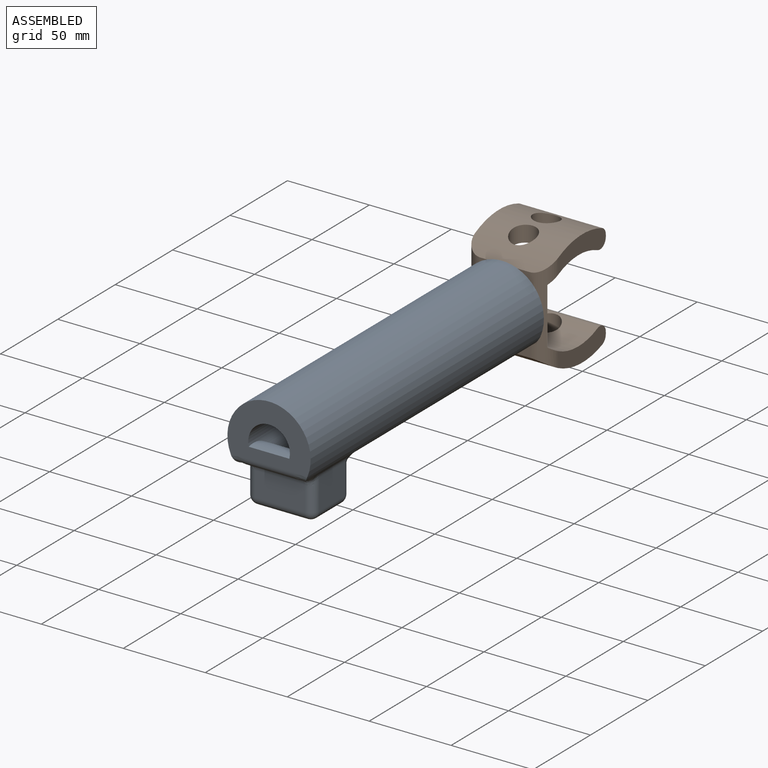
[diagram: assembled view]
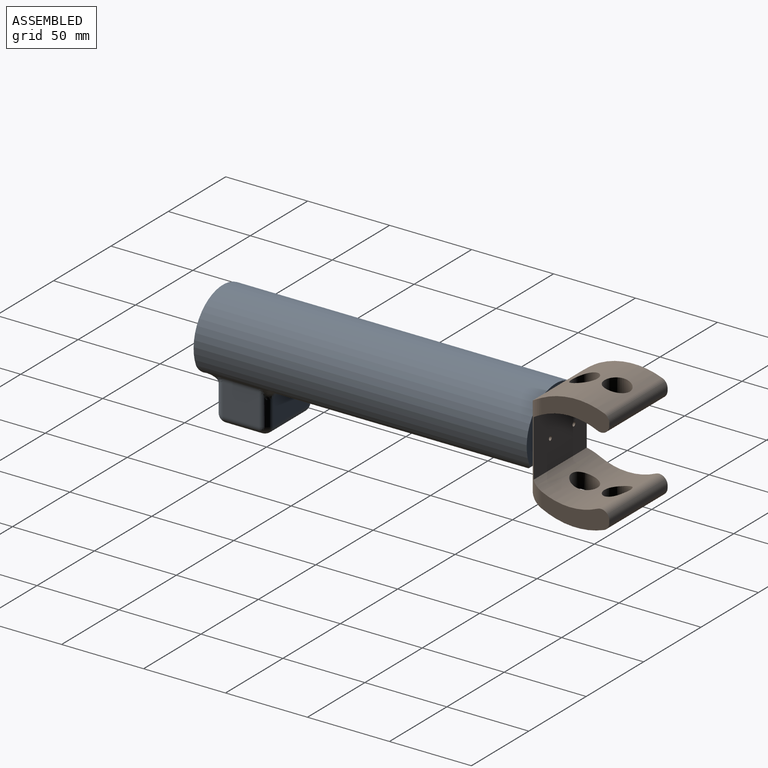
[diagram: assembled view, second angle]
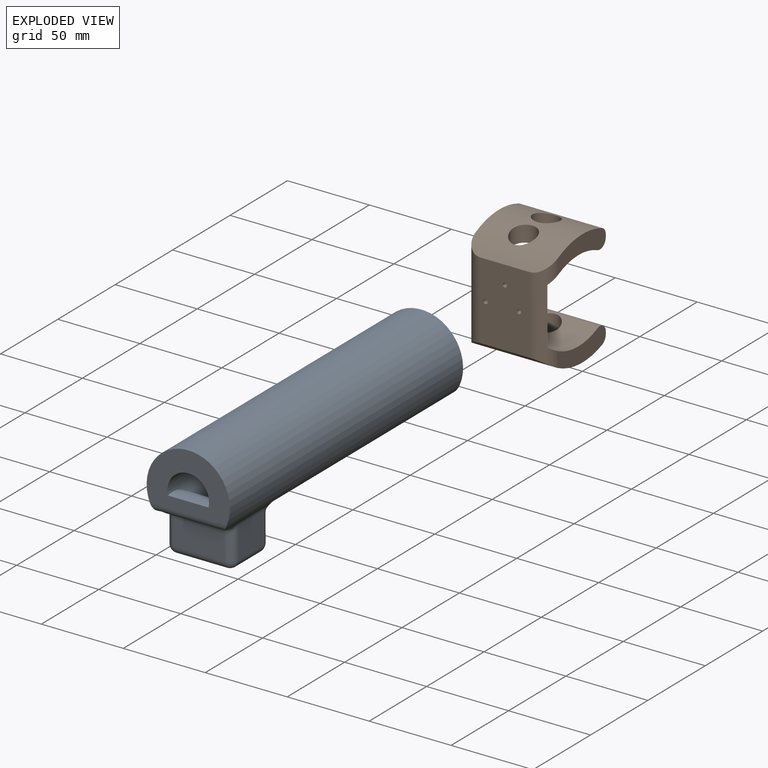
[diagram: exploded view]
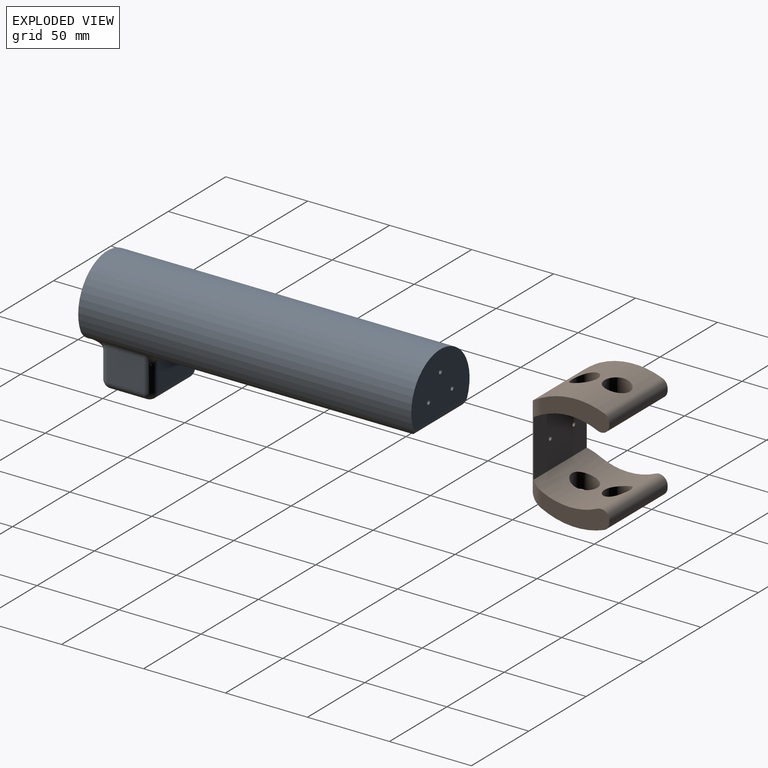
[diagram: exploded view, second angle]
ASSEMBLY  parts=2 mates=2
PART A: 77 faces, bbox 50.8x203.2x65.8 mm
  f0: plane 151.7x35.42mm, normal (0,0,-1), area 5364.2mm2, adj f24,f28,f31,f45,f46,f47
  f1: plane 50.8x35.58mm, normal (0,-1,0), area 1182.2mm2, adj f3,f36,f37,f38,f69,f70
  f2: plane 50.8x35.36mm, normal (0,1,0), area 1491.3mm2, adj f3,f46,f59,f61,f63
  f3: cylinder r=25.4mm len=203.2mm, axis (0,1,0), area 21637.4mm2, adj f1,f2,f11,f14,f19,f23,f27,f30
  f4: plane 30.78x15.24mm, normal (0,1,0), area 469mm2, adj f20,f25,f28,f32
  f5: plane 22.09x18.74mm, normal (1,0,0), area 413.9mm2, adj f17,f26,f27,f32
  f6: plane 30.78x15.24mm, normal (0,-1,0), area 469mm2, adj f9,f13,f16,f17
  f7: plane 22.09x18.74mm, normal (-1,0,0), area 413.9mm2, adj f9,f14,f15,f20
  f8: plane 30.78x22.09mm, normal (0,0,-1), area 653.4mm2, adj f15,f16,f25,f26,f51,f53,f55,f57
  f9: cylinder r=5.08mm len=18.74mm, axis (0,0,-1), area 128.2mm2, adj f6,f7,f11,f12,f41
  f10: torus R=10.16mm, axis (0,0,-1), area 8.5mm2, adj f13,f38,f39,f40
  f11: bspline ~8.71x6.84mm, area 10.3mm2, adj f3,f9,f14,f40,f41
  f12: sphere r=5.08mm, area 40.5mm2, adj f9,f15,f16
  f13: cylinder r=5.08mm len=30.78mm, axis (-1,0,0), area 233.3mm2, adj f6,f10,f18,f33,f37,f41
  f14: cylinder r=5.08mm len=22.09mm, axis (0,1,0), area 64.7mm2, adj f3,f7,f11,f19
  f15: cylinder r=5.08mm len=22.09mm, axis (0,-1,0), area 176.3mm2, adj f7,f8,f12,f21
  f16: cylinder r=5.08mm len=30.78mm, axis (1,0,0), area 245.6mm2, adj f6,f8,f12,f22
  f17: cylinder r=5.08mm len=18.74mm, axis (0,0,1), area 128.2mm2, adj f5,f6,f22,f23,f33
  f18: torus R=10.16mm, axis (0,0,-1), area 8.5mm2, adj f13,f34,f35,f36
  f19: bspline ~8.71x6.84mm, area 10.3mm2, adj f3,f14,f20,f49,f50
  f20: cylinder r=5.08mm len=18.74mm, axis (0,0,1), area 128.2mm2, adj f4,f7,f19,f21,f50
  f21: sphere r=5.08mm, area 55.3mm2, adj f15,f20,f25
  f22: sphere r=5.08mm, area 40.5mm2, adj f16,f17,f26
  f23: bspline ~8.71x6.84mm, area 10.3mm2, adj f3,f17,f27,f33,f34
  f24: torus R=10.16mm, axis (0,0,-1), area 9.3mm2, adj f0,f28,f48,f49
  f25: cylinder r=5.08mm len=30.78mm, axis (-1,0,0), area 245.6mm2, adj f4,f8,f21,f29
  f26: cylinder r=5.08mm len=22.09mm, axis (0,1,0), area 176.3mm2, adj f5,f8,f22,f29
  f27: cylinder r=5.08mm len=22.09mm, axis (0,1,0), area 64.7mm2, adj f3,f5,f23,f30
  f28: cylinder r=5.08mm len=30.78mm, axis (1,0,0), area 245.6mm2, adj f0,f4,f24,f31,f42,f50
  f29: sphere r=5.08mm, area 25.8mm2, adj f25,f26,f32
  f30: bspline ~8.71x6.84mm, area 10.3mm2, adj f3,f27,f32,f42,f43
  f31: torus R=10.16mm, axis (0,0,-1), area 9.3mm2, adj f0,f28,f43,f44
  f32: cylinder r=5.08mm len=18.74mm, axis (0,0,-1), area 128.2mm2, adj f4,f5,f29,f30,f42
  f33: bspline ~4.99x4.6mm, area 17.2mm2, adj f13,f17,f23,f34
  f34: bspline ~5.94x5.08mm, area 10mm2, adj f18,f23,f33,f35
  f35: bspline ~10x5.24mm, area 31.3mm2, adj f3,f18,f34,f36
  f36: bspline ~10.08x6.34mm, area 43.2mm2, adj f1,f3,f18,f35,f37
  f37: cylinder r=5.08mm len=30.78mm, axis (-1,0,0), area 233.3mm2, adj f1,f13,f36,f38
  f38: bspline ~10.08x6.34mm, area 43.2mm2, adj f1,f3,f10,f37,f39
  f39: bspline ~9.68x5.07mm, area 31.3mm2, adj f3,f10,f38,f40
  f40: bspline ~5.94x5.08mm, area 10mm2, adj f10,f11,f39,f41
  f41: bspline ~4.98x4.36mm, area 17.2mm2, adj f9,f11,f13,f40
  f42: bspline ~4.97x4.33mm, area 17.2mm2, adj f28,f30,f32,f43
  f43: bspline ~5.94x5.08mm, area 10mm2, adj f30,f31,f42,f44
  f44: bspline ~7.03x4.97mm, area 24.2mm2, adj f3,f31,f43,f45
  f45: cylinder r=5.08mm len=156.12mm, axis (0,1,0), area 827.6mm2, adj f0,f3,f44,f46
  f46: cylinder r=5.08mm len=46.73mm, axis (-1,0,0), area 332.7mm2, adj f0,f2,f3,f45,f47
  f47: cylinder r=5.08mm len=156.12mm, axis (0,1,0), area 827.6mm2, adj f0,f3,f46,f48
  f48: bspline ~7.37x5.26mm, area 24.2mm2, adj f3,f24,f47,f49
  f49: bspline ~5.94x5.08mm, area 10mm2, adj f19,f24,f48,f50
  f50: bspline ~4.99x4.6mm, area 17.2mm2, adj f19,f20,f28,f49
  f51: cylinder r=1.45mm len=5.08mm, axis (0,0,-1), area 46.2mm2, adj f8,f52
  f52: plane 2.9x2.9mm, normal (0,0,-1), area 6.6mm2, adj f51
  f53: cylinder r=1.45mm len=5.08mm, axis (0,0,-1), area 46.2mm2, adj f8,f54
  f54: plane 2.9x2.9mm, normal (0,0,-1), area 6.6mm2, adj f53
  f55: cylinder r=1.45mm len=5.08mm, axis (0,0,-1), area 46.2mm2, adj f8,f56
  f56: plane 2.9x2.9mm, normal (0,0,-1), area 6.6mm2, adj f55
  f57: cylinder r=1.45mm len=5.08mm, axis (0,0,-1), area 46.2mm2, adj f8,f58
  f58: plane 2.9x2.9mm, normal (0,0,-1), area 6.6mm2, adj f57
  f59: cylinder r=1.26mm len=3.05mm, axis (0,1,0), area 24.1mm2, adj f2,f60
  f60: plane 2.51x2.51mm, normal (0,1,0), area 5mm2, adj f59
  f61: cylinder r=1.26mm len=3.05mm, axis (0,1,0), area 24.1mm2, adj f2,f62
  f62: plane 2.51x2.51mm, normal (0,1,0), area 5mm2, adj f61
  f63: cylinder r=1.26mm len=3.05mm, axis (0,1,0), area 24.1mm2, adj f2,f64
  f64: plane 2.51x2.51mm, normal (0,1,0), area 5mm2, adj f63
  f65: plane 15.54x2.54mm, normal (0,-1,0), area 39.5mm2, adj f66,f68,f74,f75
  f66: plane 7.54x6.04mm, normal (1,0,0), area 42.2mm2, adj f65,f67,f69,f72,f74,f75
  f67: plane 15.54x2.54mm, normal (0,1,0), area 39.5mm2, adj f66,f68,f69,f75
  f68: plane 7.54x6.04mm, normal (-1,0,0), area 42.2mm2, adj f65,f67,f69,f73,f74,f75
  f69: cylinder r=17.78mm len=24.75mm, axis (-1,0,0), area 663.9mm2, adj f1,f66,f67,f68,f70,f72,f73
  f70: cylinder r=12.7mm len=187.45mm, axis (0,1,0), area 8643.2mm2, adj f1,f69,f71,f72,f73,f74,f76
  f71: plane 140.76x24.96mm, normal (0,0,1), area 3514mm2, adj f70,f74,f76
  f72: cylinder r=17.78mm len=18.57mm, axis (0,1,0), area 133.9mm2, adj f66,f69,f70,f74
  f73: cylinder r=17.78mm len=18.57mm, axis (0,1,0), area 133.9mm2, adj f68,f69,f70,f74
  f74: cylinder r=17.78mm len=24.96mm, axis (1,0,0), area 565.7mm2, adj f65,f66,f68,f70,f71,f72,f73
  f75: plane 15.54x6.85mm, normal (0,0,1), area 106.4mm2, adj f65,f66,f67,f68
  f76: plane 25.4x15.04mm, normal (0,-1,0), area 312.5mm2, adj f70,f71
PART B: 25 faces, bbox 70.8x51.6x50.8 mm
  f0: plane 41.41x14.34mm, normal (0,0,-1), area 423.3mm2, adj f6,f7,f8,f15,f17,f19
  f1: plane 41.41x14.34mm, normal (0,0,1), area 423.3mm2, adj f2,f3,f4,f14,f16,f18
  f2: cylinder r=39.89mm len=50.8mm, axis (0,0,-1), area 1780mm2, adj f1,f9,f11,f14,f15,f16,f21,f23
  f3: plane 50.8x1.31mm, normal (0,1,0), area 66.7mm2, adj f1,f11,f16,f18
  f4: cylinder r=47.2mm len=50.8mm, axis (0,0,-1), area 2178.9mm2, adj f1,f5,f11,f14,f15,f18,f21,f23
  f5: plane 47.2x30.48mm, normal (0,-1,0), area 1423.9mm2, adj f4,f6,f12,f13,f14,f15,f24
  f6: cylinder r=47.2mm len=50.8mm, axis (0,0,-1), area 2179mm2, adj f0,f5,f10,f14,f15,f19,f20,f22
  f7: plane 50.8x1.31mm, normal (0,1,0), area 66.7mm2, adj f0,f10,f17,f19
  f8: cylinder r=39.89mm len=50.8mm, axis (0,0,-1), area 1780mm2, adj f0,f9,f10,f14,f15,f17,f20,f22
  f9: plane 46.34x34.5mm, normal (0,1,0), area 1584mm2, adj f2,f8,f12,f13,f14,f15,f24
  f10: plane 41.41x14.34mm, normal (0,0,1), area 423.3mm2, adj f6,f7,f8,f14,f17,f19
  f11: plane 41.41x14.34mm, normal (0,0,-1), area 423.3mm2, adj f2,f3,f4,f15,f16,f18
  f12: cylinder r=1.25mm len=3.81mm, axis (0,-1,0), area 29.9mm2, adj f5,f9
  f13: cylinder r=1.25mm len=3.81mm, axis (0,-1,0), area 29.9mm2, adj f5,f9
  f14: cylinder r=10.16mm len=60.89mm, axis (-1,0,0), area 577.1mm2, adj f1,f2,f4,f5,f6,f8,f9,f10
  f15: cylinder r=10.16mm len=60.89mm, axis (1,0,0), area 577.1mm2, adj f0,f2,f4,f5,f6,f8,f9,f11
  f16: cylinder r=5.08mm len=50.8mm, axis (0,0,-1), area 510.2mm2, adj f1,f2,f3,f11,f21
  f17: cylinder r=5.08mm len=50.8mm, axis (0,0,-1), area 510.2mm2, adj f0,f7,f8,f10,f20
  f18: cylinder r=5.08mm len=50.8mm, axis (0,0,-1), area 309.7mm2, adj f1,f3,f4,f11
  f19: cylinder r=5.08mm len=50.8mm, axis (0,0,-1), area 309.7mm2, adj f0,f6,f7,f10
  f20: cylinder r=7.73mm len=15.47mm, axis (1,0,0), area 540.7mm2, adj f6,f8,f17
  f21: cylinder r=7.73mm len=15.47mm, axis (1,0,0), area 540.7mm2, adj f2,f4,f16
  f22: cylinder r=7.73mm len=15.47mm, axis (1,0,0), area 465.1mm2, adj f6,f8
  f23: cylinder r=7.73mm len=15.47mm, axis (1,0,0), area 465.1mm2, adj f2,f4
  f24: cylinder r=1.26mm len=3.81mm, axis (0,-1,0), area 30.1mm2, adj f5,f9
PLACE A t=(-71.74,-38.74,-12.21)mm
PLACE B rot(axis=(0,1,0),90deg) t=(-95.49,-10.2,-12.21)mm
MATE planar B.f5 <-> A.f2  axis (0,-1,0) through (-70.07,-38.74,-12.25)mm
MATE cylindrical B.f13 <-> A.f59  axis (0,1,0) through (-61.53,-34.93,-12.21)mm
